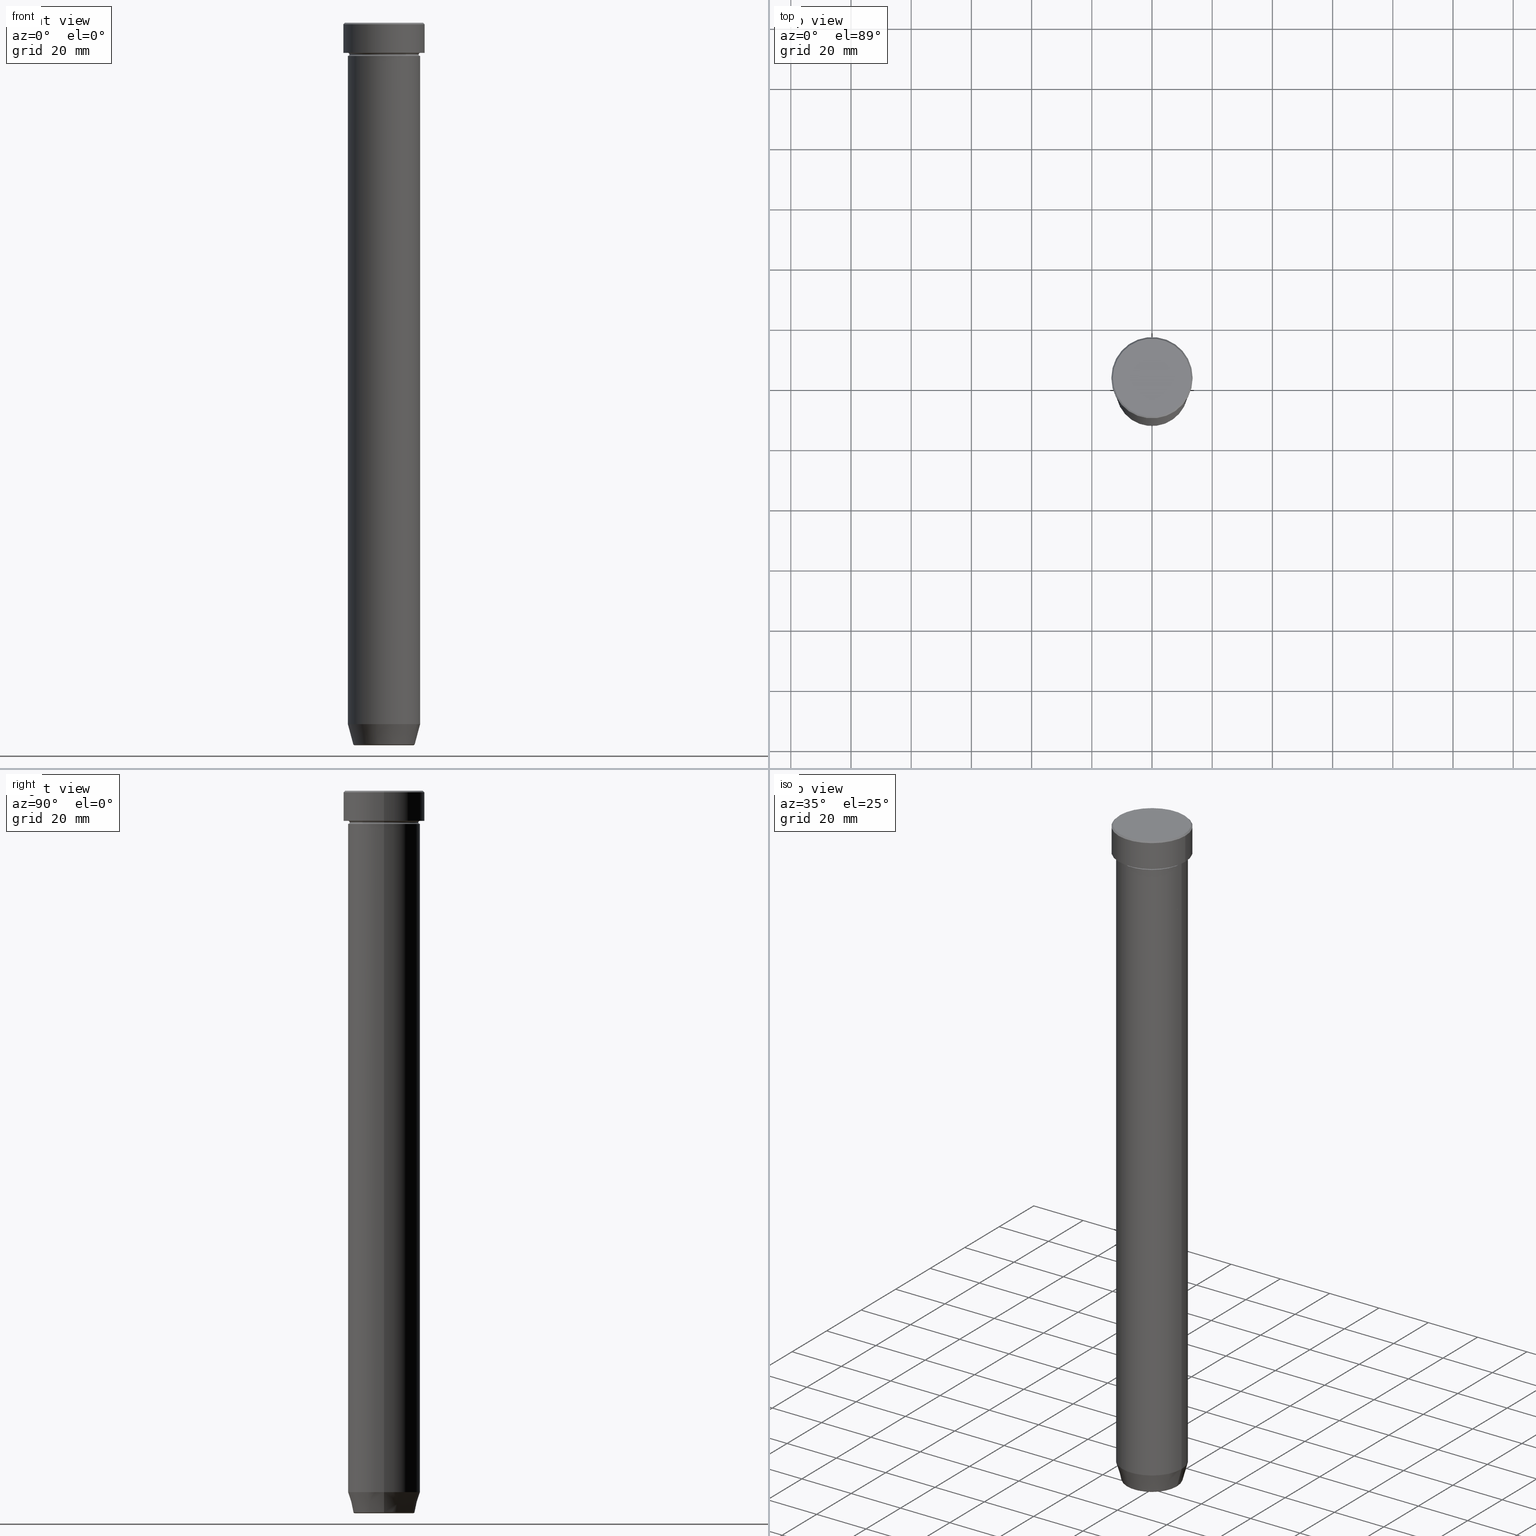
[diagram: canonical four-view strip — front | top / right | iso, engineering-drawing reading convention]
A machine part, canonical four-view strip (front | top / right | iso — engineering-drawing reading convention). The complete STEP part file that produces these views, byte-faithful:
ISO-10303-21;
HEADER;
FILE_DESCRIPTION (( 'STEP AP203' ),
    '1' );
FILE_NAME ('052b.STEP',
    '2024-01-02T17:41:07',
    ( '' ),
    ( '' ),
    'SwSTEP 2.0',
    'SolidWorks 2019',
    '' );
FILE_SCHEMA (( 'CONFIG_CONTROL_DESIGN' ));
ENDSEC;

DATA;
#1 = EDGE_CURVE ( 'NONE', #207, #245, #401, .T. ) ;
#2 = CYLINDRICAL_SURFACE ( 'NONE', #397, 12.00000000000000000 ) ;
#3 = FACE_OUTER_BOUND ( 'NONE', #31, .T. ) ;
#4 = APPROVAL_STATUS ( 'not_yet_approved' ) ;
#5 = CC_DESIGN_PERSON_AND_ORGANIZATION_ASSIGNMENT ( #160, #157, ( #568 ) ) ;
#6 =( LENGTH_UNIT ( ) NAMED_UNIT ( * ) SI_UNIT ( .MILLI., .METRE. ) );
#7 = CARTESIAN_POINT ( 'NONE',  ( 0.000000000000000000, 0.000000000000000000, -10.49999999999999822 ) ) ;
#8 = SHAPE_DEFINITION_REPRESENTATION ( #171, #261 ) ;
#9 = VECTOR ( 'NONE', #59, 1000.000000000000114 ) ;
#10 = AXIS2_PLACEMENT_3D ( 'NONE', #290, #206, #427 ) ;
#11 = DIRECTION ( 'NONE',  ( -0.000000000000000000, -0.000000000000000000, 1.000000000000000000 ) ) ;
#12 = ADVANCED_FACE ( 'NONE', ( #82 ), #408, .T. ) ;
#13 = DIRECTION ( 'NONE',  ( 1.000000000000000000, 0.000000000000000000, 0.000000000000000000 ) ) ;
#14 = EDGE_LOOP ( 'NONE', ( #303, #175 ) ) ;
#15 = ORIENTED_EDGE ( 'NONE', *, *, #308, .F. ) ;
#16 = CIRCLE ( 'NONE', #85, 13.50000000000000000 ) ;
#17 = CALENDAR_DATE ( 2024, 2, 1 ) ;
#18 = VECTOR ( 'NONE', #448, 1000.000000000000000 ) ;
#19 = CARTESIAN_POINT ( 'NONE',  ( 10.22365507213719482, 0.000000000000000000, -239.6294095225512422 ) ) ;
#20 = EDGE_LOOP ( 'NONE', ( #262, #581, #550, #122 ) ) ;
#21 = EDGE_CURVE ( 'NONE', #484, #257, #137, .T. ) ;
#22 = PERSON_AND_ORGANIZATION_ROLE ( 'classification_officer' ) ;
#23 = FACE_OUTER_BOUND ( 'NONE', #213, .T. ) ;
#24 = VERTEX_POINT ( 'NONE', #93 ) ;
#25 = CARTESIAN_POINT ( 'NONE',  ( 0.000000000000000000, 0.000000000000000000, -240.0000000000000000 ) ) ;
#26 = ORIENTED_EDGE ( 'NONE', *, *, #21, .F. ) ;
#27 = AXIS2_PLACEMENT_3D ( 'NONE', #194, #151, #336 ) ;
#28 = EDGE_CURVE ( 'NONE', #340, #489, #426, .T. ) ;
#29 = ORIENTED_EDGE ( 'NONE', *, *, #364, .T. ) ;
#30 = ORIENTED_EDGE ( 'NONE', *, *, #354, .T. ) ;
#31 = EDGE_LOOP ( 'NONE', ( #588, #165, #394, #537 ) ) ;
#32 = LINE ( 'NONE', #212, #18 ) ;
#33 = CIRCLE ( 'NONE', #328, 12.00000000000000000 ) ;
#34 = TOROIDAL_SURFACE ( 'NONE', #404, 9.740692158992663607, 0.5000000000000000000 ) ;
#35 = ORIENTED_EDGE ( 'NONE', *, *, #146, .T. ) ;
#36 = EDGE_CURVE ( 'NONE', #475, #24, #224, .T. ) ;
#37 = CIRCLE ( 'NONE', #195, 12.99999999999999645 ) ;
#38 = DIRECTION ( 'NONE',  ( 0.000000000000000000, 0.000000000000000000, -1.000000000000000000 ) ) ;
#39 = DIRECTION ( 'NONE',  ( -0.000000000000000000, -0.000000000000000000, 1.000000000000000000 ) ) ;
#40 = LINE ( 'NONE', #91, #174 ) ;
#41 = DIRECTION ( 'NONE',  ( -1.000000000000000000, 0.000000000000000000, 0.000000000000000000 ) ) ;
#42 = DIRECTION ( 'NONE',  ( -1.000000000000000000, 0.000000000000000000, 0.000000000000000000 ) ) ;
#43 = CONICAL_SURFACE ( 'NONE', #433, 10.12435565298214080, 0.2617993877991493523 ) ;
#44 = EDGE_CURVE ( 'NONE', #347, #169, #37, .T. ) ;
#45 = DIRECTION ( 'NONE',  ( -0.000000000000000000, -0.000000000000000000, 1.000000000000000000 ) ) ;
#46 = AXIS2_PLACEMENT_3D ( 'NONE', #267, #594, #457 ) ;
#47 = CC_DESIGN_APPROVAL ( #579, ( #534 ) ) ;
#48 = DIRECTION ( 'NONE',  ( 1.000000000000000000, 0.000000000000000000, 0.000000000000000000 ) ) ;
#49 = DIRECTION ( 'NONE',  ( -0.000000000000000000, -0.000000000000000000, 1.000000000000000000 ) ) ;
#50 = COORDINATED_UNIVERSAL_TIME_OFFSET ( 1, 0, .AHEAD. ) ;
#51 = DIRECTION ( 'NONE',  ( 0.000000000000000000, 0.000000000000000000, -1.000000000000000000 ) ) ;
#52 = CARTESIAN_POINT ( 'NONE',  ( 0.000000000000000000, 0.000000000000000000, 0.000000000000000000 ) ) ;
#53 = CARTESIAN_POINT ( 'NONE',  ( 0.000000000000000000, 0.000000000000000000, -27.00000000000000000 ) ) ;
#54 = CARTESIAN_POINT ( 'NONE',  ( 12.00000000000000000, 0.000000000000000000, -11.00000000000000000 ) ) ;
#55 = AXIS2_PLACEMENT_3D ( 'NONE', #161, #346, #116 ) ;
#56 = CARTESIAN_POINT ( 'NONE',  ( 0.000000000000000000, 0.000000000000000000, -27.00000000000000000 ) ) ;
#57 = EDGE_CURVE ( 'NONE', #449, #204, #88, .T. ) ;
#58 = CLOSED_SHELL ( 'NONE', ( #65, #243, #583, #549, #111, #463, #539, #592, #302, #455, #167, #504, #473 ) ) ;
#59 = DIRECTION ( 'NONE',  ( 0.2588190451025206840, 0.000000000000000000, 0.9659258262890683122 ) ) ;
#60 = ORIENTED_EDGE ( 'NONE', *, *, #28, .F. ) ;
#61 = CARTESIAN_POINT ( 'NONE',  ( 0.000000000000000000, 0.000000000000000000, -240.0000000000000000 ) ) ;
#62 = EDGE_LOOP ( 'NONE', ( #76, #400, #117, #268 ) ) ;
#63 = COORDINATED_UNIVERSAL_TIME_OFFSET ( 1, 0, .AHEAD. ) ;
#64 = CARTESIAN_POINT ( 'NONE',  ( 12.00000000000000000, 1.469576158976823947E-15, -9.999999999999998224 ) ) ;
#65 = ADVANCED_FACE ( 'NONE', ( #134 ), #312, .T. ) ;
#66 = ORIENTED_EDGE ( 'NONE', *, *, #423, .F. ) ;
#67 = CIRCLE ( 'NONE', #403, 0.5000000000000004441 ) ;
#68 = PERSON_AND_ORGANIZATION_ROLE ( 'creator' ) ;
#69 = CIRCLE ( 'NONE', #105, 11.50000000000000000 ) ;
#70 = CARTESIAN_POINT ( 'NONE',  ( 0.000000000000000000, 0.000000000000000000, -232.9999999999999716 ) ) ;
#71 = CLOSED_SHELL ( 'NONE', ( #335, #318, #12, #535, #372, #447, #293, #405 ) ) ;
#72 = EDGE_LOOP ( 'NONE', ( #435, #564 ) ) ;
#73 = AXIS2_PLACEMENT_3D ( 'NONE', #367, #503, #41 ) ;
#74 = DIRECTION ( 'NONE',  ( 1.000000000000000000, 0.000000000000000000, 0.000000000000000000 ) ) ;
#75 = VERTEX_POINT ( 'NONE', #233 ) ;
#76 = ORIENTED_EDGE ( 'NONE', *, *, #388, .F. ) ;
#77 = CONICAL_SURFACE ( 'NONE', #352, 10.12435565298214080, 0.2617993877991493523 ) ;
#78 = VERTEX_POINT ( 'NONE', #189 ) ;
#79 = ORIENTED_EDGE ( 'NONE', *, *, #218, .F. ) ;
#80 = CARTESIAN_POINT ( 'NONE',  ( 0.000000000000000000, 12.00000000000000000, -27.00000000000000000 ) ) ;
#81 = MANIFOLD_SOLID_BREP ( 'Zaoblit4', #71 ) ;
#82 = FACE_OUTER_BOUND ( 'NONE', #317, .T. ) ;
#83 = PRODUCT_DEFINITION ( 'NEZN�M�', '', #568, #497 ) ;
#84 = DIRECTION ( 'NONE',  ( -1.000000000000000000, 0.000000000000000000, -0.000000000000000000 ) ) ;
#85 = AXIS2_PLACEMENT_3D ( 'NONE', #280, #39, #371 ) ;
#86 = CONICAL_SURFACE ( 'NONE', #125, 12.99999999999999645, 0.7853981633974431720 ) ;
#87 = CARTESIAN_POINT ( 'NONE',  ( 0.000000000000000000, 0.000000000000000000, 0.000000000000000000 ) ) ;
#88 = CIRCLE ( 'NONE', #502, 9.740692158992663607 ) ;
#89 = DIRECTION ( 'NONE',  ( -1.000000000000000000, 1.224646799147353454E-16, 0.000000000000000000 ) ) ;
#90 = CARTESIAN_POINT ( 'NONE',  ( 9.740692158992663607, 0.000000000000000000, -239.5000000000000000 ) ) ;
#91 = CARTESIAN_POINT ( 'NONE',  ( -12.99999999999999645, 0.000000000000000000, 0.000000000000000000 ) ) ;
#92 = EDGE_CURVE ( 'NONE', #24, #78, #235, .T. ) ;
#93 = CARTESIAN_POINT ( 'NONE',  ( 13.50000000000000000, 0.000000000000000000, -10.00000000000000000 ) ) ;
#94 = APPLICATION_PROTOCOL_DEFINITION ( 'international standard', 'config_control_design', 1994, #222 ) ;
#95 = CARTESIAN_POINT ( 'NONE',  ( 13.50000000000000000, 0.000000000000000000, 0.000000000000000000 ) ) ;
#96 = AXIS2_PLACEMENT_3D ( 'NONE', #234, #99, #276 ) ;
#97 = DIRECTION ( 'NONE',  ( -1.000000000000000000, 0.000000000000000000, 0.000000000000000000 ) ) ;
#98 = CARTESIAN_POINT ( 'NONE',  ( 9.740692158992663607, 0.000000000000000000, -240.0000000000000000 ) ) ;
#99 = DIRECTION ( 'NONE',  ( -0.000000000000000000, -0.000000000000000000, 1.000000000000000000 ) ) ;
#100 = CARTESIAN_POINT ( 'NONE',  ( 0.000000000000000000, 0.000000000000000000, 0.000000000000000000 ) ) ;
#101 = CC_DESIGN_PERSON_AND_ORGANIZATION_ASSIGNMENT ( #479, #68, ( #83 ) ) ;
#102 = DIRECTION ( 'NONE',  ( 1.000000000000000000, 0.000000000000000000, 0.000000000000000000 ) ) ;
#103 = CARTESIAN_POINT ( 'NONE',  ( 0.000000000000000000, 0.000000000000000000, -10.49999999999999822 ) ) ;
#104 = VERTEX_POINT ( 'NONE', #461 ) ;
#105 = AXIS2_PLACEMENT_3D ( 'NONE', #342, #164, #349 ) ;
#106 = LOCAL_TIME ( 18, 41, 7.000000000000000000, #163 ) ;
#107 = MECHANICAL_CONTEXT ( 'NONE', #519, 'mechanical' ) ;
#108 = LINE ( 'NONE', #209, #547 ) ;
#109 = ORIENTED_EDGE ( 'NONE', *, *, #575, .T. ) ;
#110 = DATE_TIME_ROLE ( 'classification_date' ) ;
#111 = ADVANCED_FACE ( 'NONE', ( #3 ), #229, .T. ) ;
#112 = DIRECTION ( 'NONE',  ( -1.000000000000000000, 0.000000000000000000, 0.000000000000000000 ) ) ;
#113 = EDGE_LOOP ( 'NONE', ( #124, #566, #159, #440 ) ) ;
#114 = APPROVAL_ROLE ( '' ) ;
#115 = CC_DESIGN_PERSON_AND_ORGANIZATION_ASSIGNMENT ( #389, #208, ( #568 ) ) ;
#116 = DIRECTION ( 'NONE',  ( 1.000000000000000000, 0.000000000000000000, 0.000000000000000000 ) ) ;
#117 = ORIENTED_EDGE ( 'NONE', *, *, #399, .T. ) ;
#118 = VECTOR ( 'NONE', #477, 1000.000000000000000 ) ;
#119 = TOROIDAL_SURFACE ( 'NONE', #532, 12.00000000000000000, 0.5000000000000000000 ) ;
#120 = CARTESIAN_POINT ( 'NONE',  ( 0.000000000000000000, 0.000000000000000000, -239.5000000000000000 ) ) ;
#121 = ORIENTED_EDGE ( 'NONE', *, *, #364, .F. ) ;
#122 = ORIENTED_EDGE ( 'NONE', *, *, #128, .F. ) ;
#123 = EDGE_CURVE ( 'NONE', #204, #298, #319, .T. ) ;
#124 = ORIENTED_EDGE ( 'NONE', *, *, #57, .F. ) ;
#125 = AXIS2_PLACEMENT_3D ( 'NONE', #452, #38, #42 ) ;
#126 = ORIENTED_EDGE ( 'NONE', *, *, #211, .F. ) ;
#127 = DIRECTION ( 'NONE',  ( -0.000000000000000000, -0.000000000000000000, 1.000000000000000000 ) ) ;
#128 = EDGE_CURVE ( 'NONE', #78, #357, #368, .T. ) ;
#129 = VERTEX_POINT ( 'NONE', #596 ) ;
#130 = DIRECTION ( 'NONE',  ( 0.000000000000000000, 0.000000000000000000, -1.000000000000000000 ) ) ;
#131 = DIRECTION ( 'NONE',  ( -0.000000000000000000, -0.000000000000000000, 1.000000000000000000 ) ) ;
#132 = CARTESIAN_POINT ( 'NONE',  ( 0.000000000000000000, 0.000000000000000000, -10.49999999999999822 ) ) ;
#133 = CIRCLE ( 'NONE', #587, 0.5000000000000004441 ) ;
#134 = FACE_OUTER_BOUND ( 'NONE', #362, .T. ) ;
#135 = VERTEX_POINT ( 'NONE', #185 ) ;
#136 = EDGE_CURVE ( 'NONE', #24, #475, #16, .T. ) ;
#137 = CIRCLE ( 'NONE', #407, 12.00000000000000000 ) ;
#138 = DIRECTION ( 'NONE',  ( 1.000000000000000000, 0.000000000000000000, 0.000000000000000000 ) ) ;
#139 = CARTESIAN_POINT ( 'NONE',  ( 0.000000000000000000, 0.000000000000000000, -11.00000000000000000 ) ) ;
#140 = PERSON_AND_ORGANIZATION_ROLE ( 'design_owner' ) ;
#141 = DIRECTION ( 'NONE',  ( 1.000000000000000000, 0.000000000000000000, 0.000000000000000000 ) ) ;
#142 =( NAMED_UNIT ( * ) PLANE_ANGLE_UNIT ( ) SI_UNIT ( $, .RADIAN. ) );
#143 = DIRECTION ( 'NONE',  ( 1.000000000000000000, 0.000000000000000000, 0.000000000000000000 ) ) ;
#144 = FACE_OUTER_BOUND ( 'NONE', #313, .T. ) ;
#145 = AXIS2_PLACEMENT_3D ( 'NONE', #548, #274, #456 ) ;
#146 = EDGE_CURVE ( 'NONE', #169, #78, #553, .T. ) ;
#147 = CARTESIAN_POINT ( 'NONE',  ( -9.740692158992663607, 1.192890747399008653E-15, -239.5000000000000000 ) ) ;
#148 = DIRECTION ( 'NONE',  ( -0.000000000000000000, -0.000000000000000000, 1.000000000000000000 ) ) ;
#149 = CARTESIAN_POINT ( 'NONE',  ( 0.000000000000000000, 13.50000000000000000, -9.999999999999998224 ) ) ;
#150 = ORIENTED_EDGE ( 'NONE', *, *, #21, .T. ) ;
#151 = DIRECTION ( 'NONE',  ( 0.000000000000000000, 0.000000000000000000, 1.000000000000000000 ) ) ;
#152 = DIRECTION ( 'NONE',  ( -0.000000000000000000, -0.000000000000000000, 1.000000000000000000 ) ) ;
#153 = AXIS2_PLACEMENT_3D ( 'NONE', #149, #474, #203 ) ;
#154 = ORIENTED_EDGE ( 'NONE', *, *, #1, .F. ) ;
#155 = LOCAL_TIME ( 18, 41, 7.000000000000000000, #392 ) ;
#156 = EDGE_CURVE ( 'NONE', #489, #340, #508, .T. ) ;
#157 = PERSON_AND_ORGANIZATION_ROLE ( 'design_supplier' ) ;
#158 = PLANE ( 'NONE',  #153 ) ;
#159 = ORIENTED_EDGE ( 'NONE', *, *, #492, .F. ) ;
#160 = PERSON_AND_ORGANIZATION ( #246, #523 ) ;
#161 = CARTESIAN_POINT ( 'NONE',  ( 0.000000000000000000, 0.000000000000000000, -239.5000000000000000 ) ) ;
#162 = EDGE_LOOP ( 'NONE', ( #536, #216, #343, #201 ) ) ;
#163 = COORDINATED_UNIVERSAL_TIME_OFFSET ( 1, 0, .AHEAD. ) ;
#164 = DIRECTION ( 'NONE',  ( -0.000000000000000000, -0.000000000000000000, 1.000000000000000000 ) ) ;
#165 = ORIENTED_EDGE ( 'NONE', *, *, #511, .T. ) ;
#166 = AXIS2_PLACEMENT_3D ( 'NONE', #569, #286, #383 ) ;
#167 = ADVANCED_FACE ( 'NONE', ( #506 ), #251, .F. ) ;
#168 = ORIENTED_EDGE ( 'NONE', *, *, #423, .T. ) ;
#169 = VERTEX_POINT ( 'NONE', #421 ) ;
#170 = EDGE_LOOP ( 'NONE', ( #154, #471, #387, #431 ) ) ;
#171 = PRODUCT_DEFINITION_SHAPE ( 'NONE', 'NONE',  #83 ) ;
#172 = EDGE_CURVE ( 'NONE', #307, #135, #33, .T. ) ;
#173 = FACE_OUTER_BOUND ( 'NONE', #531, .T. ) ;
#174 = VECTOR ( 'NONE', #177, 1000.000000000000000 ) ;
#175 = ORIENTED_EDGE ( 'NONE', *, *, #236, .F. ) ;
#176 = AXIS2_PLACEMENT_3D ( 'NONE', #87, #131, #590 ) ;
#177 = DIRECTION ( 'NONE',  ( -0.7071067811865439090, 0.000000000000000000, -0.7071067811865512365 ) ) ;
#178 = CC_DESIGN_DATE_AND_TIME_ASSIGNMENT ( #526, #110, ( #534 ) ) ;
#179 = CARTESIAN_POINT ( 'NONE',  ( 0.000000000000000000, 0.000000000000000000, -9.999999999999998224 ) ) ;
#180 = FACE_OUTER_BOUND ( 'NONE', #248, .T. ) ;
#181 = DIRECTION ( 'NONE',  ( 1.000000000000000000, 0.000000000000000000, 0.000000000000000000 ) ) ;
#182 = DIRECTION ( 'NONE',  ( -1.000000000000000000, 0.000000000000000000, 0.000000000000000000 ) ) ;
#183 = AXIS2_PLACEMENT_3D ( 'NONE', #226, #196, #527 ) ;
#184 = CIRCLE ( 'NONE', #253, 10.22365507213719482 ) ;
#185 = CARTESIAN_POINT ( 'NONE',  ( -12.00000000000000000, 1.469576158976823947E-15, -27.00000000000000000 ) ) ;
#186 = DIRECTION ( 'NONE',  ( -0.000000000000000000, -0.000000000000000000, 1.000000000000000000 ) ) ;
#187 = DIRECTION ( 'NONE',  ( -0.000000000000000000, -0.000000000000000000, 1.000000000000000000 ) ) ;
#188 = CARTESIAN_POINT ( 'NONE',  ( 0.000000000000000000, 0.000000000000000000, 0.000000000000000000 ) ) ;
#189 = CARTESIAN_POINT ( 'NONE',  ( 13.50000000000000000, 0.000000000000000000, -0.5000000000000091038 ) ) ;
#190 = PLANE ( 'NONE',  #424 ) ;
#191 = CC_DESIGN_PERSON_AND_ORGANIZATION_ASSIGNMENT ( #202, #140, ( #355 ) ) ;
#192 = CARTESIAN_POINT ( 'NONE',  ( -10.22365507213719482, 1.360806402472382547E-15, -239.6294095225512422 ) ) ;
#193 = CIRCLE ( 'NONE', #369, 10.22365507213719482 ) ;
#194 = CARTESIAN_POINT ( 'NONE',  ( 0.000000000000000000, 0.000000000000000000, 0.000000000000000000 ) ) ;
#195 = AXIS2_PLACEMENT_3D ( 'NONE', #100, #507, #282 ) ;
#196 = DIRECTION ( 'NONE',  ( 0.000000000000000000, 0.000000000000000000, -1.000000000000000000 ) ) ;
#197 = ORIENTED_EDGE ( 'NONE', *, *, #412, .T. ) ;
#198 = DIRECTION ( 'NONE',  ( 0.000000000000000000, -0.000000000000000000, 1.000000000000000000 ) ) ;
#199 = CARTESIAN_POINT ( 'NONE',  ( 0.000000000000000000, 0.000000000000000000, -27.00000000000000000 ) ) ;
#200 = EDGE_CURVE ( 'NONE', #381, #129, #422, .T. ) ;
#201 = ORIENTED_EDGE ( 'NONE', *, *, #575, .F. ) ;
#202 = PERSON_AND_ORGANIZATION ( #246, #523 ) ;
#203 = DIRECTION ( 'NONE',  ( -1.000000000000000000, 0.000000000000000000, -0.000000000000000000 ) ) ;
#204 = VERTEX_POINT ( 'NONE', #98 ) ;
#205 = CALENDAR_DATE ( 2024, 2, 1 ) ;
#206 = DIRECTION ( 'NONE',  ( -1.224646799147353207E-16, 1.000000000000000000, 0.000000000000000000 ) ) ;
#207 = VERTEX_POINT ( 'NONE', #192 ) ;
#208 = PERSON_AND_ORGANIZATION_ROLE ( 'creator' ) ;
#209 = CARTESIAN_POINT ( 'NONE',  ( 12.00000000000000000, 0.000000000000000000, 0.000000000000000000 ) ) ;
#210 = ORIENTED_EDGE ( 'NONE', *, *, #521, .T. ) ;
#211 = EDGE_CURVE ( 'NONE', #449, #207, #67, .T. ) ;
#212 = CARTESIAN_POINT ( 'NONE',  ( -12.00000000000000000, 1.469576158976823947E-15, 0.000000000000000000 ) ) ;
#213 = EDGE_LOOP ( 'NONE', ( #223, #295 ) ) ;
#214 = AXIS2_PLACEMENT_3D ( 'NONE', #339, #565, #516 ) ;
#215 = AXIS2_PLACEMENT_3D ( 'NONE', #542, #127, #74 ) ;
#216 = ORIENTED_EDGE ( 'NONE', *, *, #345, .T. ) ;
#217 = ORIENTED_EDGE ( 'NONE', *, *, #412, .F. ) ;
#218 = EDGE_CURVE ( 'NONE', #357, #78, #240, .T. ) ;
#219 = ORIENTED_EDGE ( 'NONE', *, *, #264, .T. ) ;
#220 = DIRECTION ( 'NONE',  ( -0.000000000000000000, -0.000000000000000000, 1.000000000000000000 ) ) ;
#221 = AXIS2_PLACEMENT_3D ( 'NONE', #80, #130, #84 ) ;
#222 = APPLICATION_CONTEXT ( 'configuration controlled 3d designs of mechanical parts and assemblies' ) ;
#223 = ORIENTED_EDGE ( 'NONE', *, *, #272, .T. ) ;
#224 = CIRCLE ( 'NONE', #559, 13.50000000000000000 ) ;
#225 = CARTESIAN_POINT ( 'NONE',  ( -12.00000000000000000, 0.000000000000000000, -9.999999999999998224 ) ) ;
#226 = CARTESIAN_POINT ( 'NONE',  ( 0.000000000000000000, 0.000000000000000000, -0.5000000000000091038 ) ) ;
#227 = CYLINDRICAL_SURFACE ( 'NONE', #241, 12.00000000000000000 ) ;
#228 = EDGE_CURVE ( 'NONE', #245, #135, #563, .T. ) ;
#229 = CYLINDRICAL_SURFACE ( 'NONE', #414, 13.50000000000000000 ) ;
#230 = CARTESIAN_POINT ( 'NONE',  ( -12.00000000000000000, 1.469576158976823947E-15, -11.00000000000000000 ) ) ;
#231 = LOCAL_TIME ( 18, 41, 7.000000000000000000, #63 ) ;
#232 = CC_DESIGN_APPROVAL ( #311, ( #568 ) ) ;
#233 = CARTESIAN_POINT ( 'NONE',  ( -12.00000000000000000, 1.469576158976823947E-15, -27.00000000000000000 ) ) ;
#234 = CARTESIAN_POINT ( 'NONE',  ( 0.000000000000000000, 0.000000000000000000, 0.000000000000000000 ) ) ;
#235 = LINE ( 'NONE', #95, #491 ) ;
#236 = EDGE_CURVE ( 'NONE', #75, #545, #450, .T. ) ;
#237 = CARTESIAN_POINT ( 'NONE',  ( 0.000000000000000000, 0.000000000000000000, -239.6294095225512422 ) ) ;
#238 = DIRECTION ( 'NONE',  ( 1.000000000000000000, 0.000000000000000000, 0.000000000000000000 ) ) ;
#239 = DIRECTION ( 'NONE',  ( 1.000000000000000000, 0.000000000000000000, 0.000000000000000000 ) ) ;
#240 = CIRCLE ( 'NONE', #183, 13.50000000000000000 ) ;
#241 = AXIS2_PLACEMENT_3D ( 'NONE', #314, #585, #360 ) ;
#242 = DIRECTION ( 'NONE',  ( 0.000000000000000000, 0.000000000000000000, -1.000000000000000000 ) ) ;
#243 = ADVANCED_FACE ( 'NONE', ( #244 ), #442, .F. ) ;
#244 = FACE_OUTER_BOUND ( 'NONE', #445, .T. ) ;
#245 = VERTEX_POINT ( 'NONE', #470 ) ;
#246 = PERSON ( 'NEUR�EN�', 'NEUR�EN�', 'NEUR�EN�', ('NEUR�EN�'), ('NEUR�EN�'), ('NEUR�EN�') ) ;
#247 = DIRECTION ( 'NONE',  ( 1.000000000000000000, 0.000000000000000000, 0.000000000000000000 ) ) ;
#248 = EDGE_LOOP ( 'NONE', ( #384, #30, #197, #66 ) ) ;
#249 = DATE_AND_TIME ( #205, #231 ) ;
#250 = LINE ( 'NONE', #386, #9 ) ;
#251 = TOROIDAL_SURFACE ( 'NONE', #586, 12.00000000000000000, 0.5000000000000000000 ) ;
#252 = ORIENTED_EDGE ( 'NONE', *, *, #236, .T. ) ;
#253 = AXIS2_PLACEMENT_3D ( 'NONE', #237, #374, #97 ) ;
#254 = APPROVAL_STATUS ( 'not_yet_approved' ) ;
#255 = UNCERTAINTY_MEASURE_WITH_UNIT (LENGTH_MEASURE( 1.000000000000000082E-05 ), #6, 'distance_accuracy_value', 'NONE');
#256 = DIRECTION ( 'NONE',  ( -0.000000000000000000, -0.000000000000000000, 1.000000000000000000 ) ) ;
#257 = VERTEX_POINT ( 'NONE', #64 ) ;
#258 = EDGE_CURVE ( 'NONE', #298, #104, #250, .T. ) ;
#259 = DIRECTION ( 'NONE',  ( -1.000000000000000000, 0.000000000000000000, 0.000000000000000000 ) ) ;
#260 = EDGE_LOOP ( 'NONE', ( #444, #109 ) ) ;
#261 = ADVANCED_BREP_SHAPE_REPRESENTATION ( '052b', ( #460, #81, #27 ), #320 ) ;
#262 = ORIENTED_EDGE ( 'NONE', *, *, #146, .F. ) ;
#263 = AXIS2_PLACEMENT_3D ( 'NONE', #297, #429, #300 ) ;
#264 = EDGE_CURVE ( 'NONE', #104, #245, #350, .T. ) ;
#265 = EDGE_LOOP ( 'NONE', ( #150, #168 ) ) ;
#266 = ORIENTED_EDGE ( 'NONE', *, *, #36, .T. ) ;
#267 = CARTESIAN_POINT ( 'NONE',  ( 12.00000000000000000, 0.000000000000000000, -10.49999999999999822 ) ) ;
#268 = ORIENTED_EDGE ( 'NONE', *, *, #28, .T. ) ;
#269 = AXIS2_PLACEMENT_3D ( 'NONE', #199, #152, #13 ) ;
#270 = AXIS2_PLACEMENT_3D ( 'NONE', #472, #418, #102 ) ;
#271 = DIRECTION ( 'NONE',  ( -0.000000000000000000, -0.000000000000000000, 1.000000000000000000 ) ) ;
#272 = EDGE_CURVE ( 'NONE', #204, #449, #520, .T. ) ;
#273 = CARTESIAN_POINT ( 'NONE',  ( 0.000000000000000000, 0.000000000000000000, -9.999999999999998224 ) ) ;
#274 = DIRECTION ( 'NONE',  ( -0.000000000000000000, -0.000000000000000000, 1.000000000000000000 ) ) ;
#275 = DIRECTION ( 'NONE',  ( -0.000000000000000000, -1.000000000000000000, -0.000000000000000000 ) ) ;
#276 = DIRECTION ( 'NONE',  ( 1.000000000000000000, 0.000000000000000000, 0.000000000000000000 ) ) ;
#277 = AXIS2_PLACEMENT_3D ( 'NONE', #90, #560, #413 ) ;
#278 = TOROIDAL_SURFACE ( 'NONE', #55, 9.740692158992663607, 0.5000000000000000000 ) ;
#279 = EDGE_CURVE ( 'NONE', #545, #75, #337, .T. ) ;
#280 = CARTESIAN_POINT ( 'NONE',  ( 0.000000000000000000, 0.000000000000000000, -10.00000000000000000 ) ) ;
#281 = DIRECTION ( 'NONE',  ( -0.000000000000000000, -0.000000000000000000, 1.000000000000000000 ) ) ;
#282 = DIRECTION ( 'NONE',  ( 1.000000000000000000, 0.000000000000000000, 0.000000000000000000 ) ) ;
#283 = CC_DESIGN_PERSON_AND_ORGANIZATION_ASSIGNMENT ( #385, #22, ( #534 ) ) ;
#284 = APPROVAL_DATE_TIME ( #561, #579 ) ;
#285 = PERSON_AND_ORGANIZATION ( #246, #523 ) ;
#286 = DIRECTION ( 'NONE',  ( -0.000000000000000000, -0.000000000000000000, 1.000000000000000000 ) ) ;
#287 = PERSON_AND_ORGANIZATION ( #246, #523 ) ;
#288 = CARTESIAN_POINT ( 'NONE',  ( 0.000000000000000000, 0.000000000000000000, 0.000000000000000000 ) ) ;
#289 = CIRCLE ( 'NONE', #10, 0.5000000000000004441 ) ;
#290 = CARTESIAN_POINT ( 'NONE',  ( 12.00000000000000000, 1.469576158976823947E-15, -10.49999999999999822 ) ) ;
#291 = EDGE_LOOP ( 'NONE', ( #446, #266, #428, #570 ) ) ;
#292 = DIRECTION ( 'NONE',  ( -1.000000000000000000, 0.000000000000000000, -0.000000000000000000 ) ) ;
#293 = ADVANCED_FACE ( 'NONE', ( #23 ), #524, .F. ) ;
#294 = DIRECTION ( 'NONE',  ( -0.000000000000000000, -0.000000000000000000, 1.000000000000000000 ) ) ;
#295 = ORIENTED_EDGE ( 'NONE', *, *, #57, .T. ) ;
#296 = CALENDAR_DATE ( 2024, 2, 1 ) ;
#297 = CARTESIAN_POINT ( 'NONE',  ( 0.000000000000000000, 2.326828918379971286E-14, -240.0000000000000000 ) ) ;
#298 = VERTEX_POINT ( 'NONE', #19 ) ;
#299 = DATE_AND_TIME ( #17, #155 ) ;
#300 = DIRECTION ( 'NONE',  ( 1.000000000000000000, 0.000000000000000000, 0.000000000000000000 ) ) ;
#301 = AXIS2_PLACEMENT_3D ( 'NONE', #375, #453, #141 ) ;
#302 = ADVANCED_FACE ( 'NONE', ( #530, #481 ), #158, .T. ) ;
#303 = ORIENTED_EDGE ( 'NONE', *, *, #279, .F. ) ;
#304 = AXIS2_PLACEMENT_3D ( 'NONE', #56, #148, #48 ) ;
#305 = DIRECTION ( 'NONE',  ( 1.000000000000000000, 0.000000000000000000, 0.000000000000000000 ) ) ;
#306 = ORIENTED_EDGE ( 'NONE', *, *, #44, .T. ) ;
#307 = VERTEX_POINT ( 'NONE', #333 ) ;
#308 = EDGE_CURVE ( 'NONE', #104, #307, #108, .T. ) ;
#309 = ORIENTED_EDGE ( 'NONE', *, *, #123, .T. ) ;
#310 = AXIS2_PLACEMENT_3D ( 'NONE', #70, #256, #393 ) ;
#311 = APPROVAL ( #254, 'NEUR�EN�' ) ;
#312 = CONICAL_SURFACE ( 'NONE', #73, 12.99999999999999645, 0.7853981633974431720 ) ;
#313 = EDGE_LOOP ( 'NONE', ( #573, #495, #577, #543 ) ) ;
#314 = CARTESIAN_POINT ( 'NONE',  ( 0.000000000000000000, 0.000000000000000000, 0.000000000000000000 ) ) ;
#315 = ORIENTED_EDGE ( 'NONE', *, *, #430, .F. ) ;
#316 = DIRECTION ( 'NONE',  ( -0.000000000000000000, -0.000000000000000000, 1.000000000000000000 ) ) ;
#317 = EDGE_LOOP ( 'NONE', ( #219, #518, #398, #15 ) ) ;
#318 = ADVANCED_FACE ( 'NONE', ( #572 ), #43, .T. ) ;
#319 = CIRCLE ( 'NONE', #277, 0.5000000000000004441 ) ;
#320 =( GEOMETRIC_REPRESENTATION_CONTEXT ( 3 ) GLOBAL_UNCERTAINTY_ASSIGNED_CONTEXT ( ( #255 ) ) GLOBAL_UNIT_ASSIGNED_CONTEXT ( ( #6, #142, #510 ) ) REPRESENTATION_CONTEXT ( 'NONE', 'WORKASPACE' ) );
#321 = DIRECTION ( 'NONE',  ( 0.000000000000000000, 0.000000000000000000, -1.000000000000000000 ) ) ;
#322 = DIRECTION ( 'NONE',  ( 1.000000000000000000, 0.000000000000000000, 0.000000000000000000 ) ) ;
#323 = FACE_OUTER_BOUND ( 'NONE', #20, .T. ) ;
#324 = DIRECTION ( 'NONE',  ( -1.000000000000000000, 0.000000000000000000, 0.000000000000000000 ) ) ;
#325 = FACE_OUTER_BOUND ( 'NONE', #260, .T. ) ;
#326 = EDGE_CURVE ( 'NONE', #129, #257, #289, .T. ) ;
#327 = DIRECTION ( 'NONE',  ( -0.000000000000000000, -0.000000000000000000, 1.000000000000000000 ) ) ;
#328 = AXIS2_PLACEMENT_3D ( 'NONE', #458, #330, #512 ) ;
#329 = CIRCLE ( 'NONE', #500, 0.5000000000000004441 ) ;
#330 = DIRECTION ( 'NONE',  ( -0.000000000000000000, -0.000000000000000000, 1.000000000000000000 ) ) ;
#331 = DIRECTION ( 'NONE',  ( 1.224646799147353207E-16, 1.000000000000000000, 0.000000000000000000 ) ) ;
#332 = DIRECTION ( 'NONE',  ( 1.000000000000000000, 0.000000000000000000, 0.000000000000000000 ) ) ;
#333 = CARTESIAN_POINT ( 'NONE',  ( 12.00000000000000000, 0.000000000000000000, -27.00000000000000000 ) ) ;
#334 = ORIENTED_EDGE ( 'NONE', *, *, #279, .T. ) ;
#335 = ADVANCED_FACE ( 'NONE', ( #533 ), #278, .T. ) ;
#336 = DIRECTION ( 'NONE',  ( 1.000000000000000000, 0.000000000000000000, 0.000000000000000000 ) ) ;
#337 = CIRCLE ( 'NONE', #214, 12.00000000000000000 ) ;
#338 = AXIS2_PLACEMENT_3D ( 'NONE', #273, #546, #259 ) ;
#339 = CARTESIAN_POINT ( 'NONE',  ( 0.000000000000000000, 0.000000000000000000, -27.00000000000000000 ) ) ;
#340 = VERTEX_POINT ( 'NONE', #54 ) ;
#341 = CALENDAR_DATE ( 2024, 2, 1 ) ;
#342 = CARTESIAN_POINT ( 'NONE',  ( 0.000000000000000000, 0.000000000000000000, -10.49999999999999822 ) ) ;
#343 = ORIENTED_EDGE ( 'NONE', *, *, #308, .T. ) ;
#344 = PERSON_AND_ORGANIZATION ( #246, #523 ) ;
#345 = EDGE_CURVE ( 'NONE', #245, #104, #578, .T. ) ;
#346 = DIRECTION ( 'NONE',  ( -0.000000000000000000, -0.000000000000000000, 1.000000000000000000 ) ) ;
#347 = VERTEX_POINT ( 'NONE', #576 ) ;
#348 = COORDINATED_UNIVERSAL_TIME_OFFSET ( 1, 0, .AHEAD. ) ;
#349 = DIRECTION ( 'NONE',  ( 1.000000000000000000, 0.000000000000000000, 0.000000000000000000 ) ) ;
#350 = CIRCLE ( 'NONE', #166, 12.00000000000000000 ) ;
#351 = EDGE_LOOP ( 'NONE', ( #306, #210 ) ) ;
#352 = AXIS2_PLACEMENT_3D ( 'NONE', #25, #186, #138 ) ;
#353 = ORIENTED_EDGE ( 'NONE', *, *, #200, .T. ) ;
#354 = EDGE_CURVE ( 'NONE', #129, #381, #69, .T. ) ;
#355 = PRODUCT ( '052b', '052b', '', ( #107 ) ) ;
#356 = EDGE_LOOP ( 'NONE', ( #499, #584, #391, #402 ) ) ;
#357 = VERTEX_POINT ( 'NONE', #425 ) ;
#358 = CIRCLE ( 'NONE', #338, 12.00000000000000000 ) ;
#359 = LOCAL_TIME ( 18, 41, 7.000000000000000000, #348 ) ;
#360 = DIRECTION ( 'NONE',  ( 1.000000000000000000, 0.000000000000000000, 0.000000000000000000 ) ) ;
#361 = VECTOR ( 'NONE', #541, 1000.000000000000114 ) ;
#362 = EDGE_LOOP ( 'NONE', ( #365, #35, #79, #525 ) ) ;
#363 = CARTESIAN_POINT ( 'NONE',  ( -9.740692158992663607, 1.222463696683475393E-15, -240.0000000000000000 ) ) ;
#364 = EDGE_CURVE ( 'NONE', #75, #489, #32, .T. ) ;
#365 = ORIENTED_EDGE ( 'NONE', *, *, #521, .F. ) ;
#366 = LINE ( 'NONE', #501, #557 ) ;
#367 = CARTESIAN_POINT ( 'NONE',  ( 0.000000000000000000, 0.000000000000000000, 0.000000000000000000 ) ) ;
#368 = CIRCLE ( 'NONE', #301, 13.50000000000000000 ) ;
#369 = AXIS2_PLACEMENT_3D ( 'NONE', #409, #416, #591 ) ;
#370 = DIRECTION ( 'NONE',  ( 1.224646799147353207E-16, 1.000000000000000000, 0.000000000000000000 ) ) ;
#371 = DIRECTION ( 'NONE',  ( 1.000000000000000000, 0.000000000000000000, 0.000000000000000000 ) ) ;
#372 = ADVANCED_FACE ( 'NONE', ( #439 ), #395, .T. ) ;
#373 = DIRECTION ( 'NONE',  ( 1.000000000000000000, 0.000000000000000000, 0.000000000000000000 ) ) ;
#374 = DIRECTION ( 'NONE',  ( -0.000000000000000000, -0.000000000000000000, 1.000000000000000000 ) ) ;
#375 = CARTESIAN_POINT ( 'NONE',  ( 0.000000000000000000, 0.000000000000000000, -0.5000000000000091038 ) ) ;
#376 = FACE_OUTER_BOUND ( 'NONE', #351, .T. ) ;
#377 = CIRCLE ( 'NONE', #304, 12.00000000000000000 ) ;
#378 = DIRECTION ( 'NONE',  ( -0.000000000000000000, -0.000000000000000000, 1.000000000000000000 ) ) ;
#379 = FACE_OUTER_BOUND ( 'NONE', #538, .T. ) ;
#380 = CC_DESIGN_DATE_AND_TIME_ASSIGNMENT ( #249, #574, ( #83 ) ) ;
#381 = VERTEX_POINT ( 'NONE', #406 ) ;
#382 = CYLINDRICAL_SURFACE ( 'NONE', #270, 13.50000000000000000 ) ;
#383 = DIRECTION ( 'NONE',  ( 1.000000000000000000, 0.000000000000000000, 0.000000000000000000 ) ) ;
#384 = ORIENTED_EDGE ( 'NONE', *, *, #326, .F. ) ;
#385 = PERSON_AND_ORGANIZATION ( #246, #523 ) ;
#386 = CARTESIAN_POINT ( 'NONE',  ( 10.12435565298214080, 0.000000000000000000, -240.0000000000000000 ) ) ;
#387 = ORIENTED_EDGE ( 'NONE', *, *, #258, .T. ) ;
#388 = EDGE_CURVE ( 'NONE', #381, #489, #133, .T. ) ;
#389 = PERSON_AND_ORGANIZATION ( #246, #523 ) ;
#390 = CARTESIAN_POINT ( 'NONE',  ( -12.00000000000000000, 1.469576158976823947E-15, 0.000000000000000000 ) ) ;
#391 = ORIENTED_EDGE ( 'NONE', *, *, #264, .F. ) ;
#392 = COORDINATED_UNIVERSAL_TIME_OFFSET ( 1, 0, .AHEAD. ) ;
#393 = DIRECTION ( 'NONE',  ( 1.000000000000000000, 0.000000000000000000, 0.000000000000000000 ) ) ;
#394 = ORIENTED_EDGE ( 'NONE', *, *, #218, .T. ) ;
#395 = CYLINDRICAL_SURFACE ( 'NONE', #215, 12.00000000000000000 ) ;
#396 = AXIS2_PLACEMENT_3D ( 'NONE', #434, #464, #437 ) ;
#397 = AXIS2_PLACEMENT_3D ( 'NONE', #188, #562, #239 ) ;
#398 = ORIENTED_EDGE ( 'NONE', *, *, #172, .F. ) ;
#399 = EDGE_CURVE ( 'NONE', #129, #340, #451, .T. ) ;
#400 = ORIENTED_EDGE ( 'NONE', *, *, #354, .F. ) ;
#401 = LINE ( 'NONE', #493, #361 ) ;
#402 = ORIENTED_EDGE ( 'NONE', *, *, #258, .F. ) ;
#403 = AXIS2_PLACEMENT_3D ( 'NONE', #147, #331, #514 ) ;
#404 = AXIS2_PLACEMENT_3D ( 'NONE', #120, #316, #305 ) ;
#405 = ADVANCED_FACE ( 'NONE', ( #589 ), #34, .T. ) ;
#406 = CARTESIAN_POINT ( 'NONE',  ( -11.50000000000000000, 1.438959988998139963E-15, -10.49999999999999822 ) ) ;
#407 = AXIS2_PLACEMENT_3D ( 'NONE', #179, #271, #324 ) ;
#408 = CYLINDRICAL_SURFACE ( 'NONE', #176, 12.00000000000000000 ) ;
#409 = CARTESIAN_POINT ( 'NONE',  ( 0.000000000000000000, 0.000000000000000000, -239.6294095225512422 ) ) ;
#410 = CARTESIAN_POINT ( 'NONE',  ( 0.000000000000000000, 0.000000000000000000, -240.0000000000000000 ) ) ;
#411 = CARTESIAN_POINT ( 'NONE',  ( -13.50000000000000000, 1.653273178848926867E-15, -10.00000000000000000 ) ) ;
#412 = EDGE_CURVE ( 'NONE', #381, #484, #329, .T. ) ;
#413 = DIRECTION ( 'NONE',  ( 0.000000000000000000, 0.000000000000000000, -1.000000000000000000 ) ) ;
#414 = AXIS2_PLACEMENT_3D ( 'NONE', #52, #554, #238 ) ;
#415 = APPROVAL_PERSON_ORGANIZATION ( #285, #485, #114 ) ;
#416 = DIRECTION ( 'NONE',  ( -0.000000000000000000, -0.000000000000000000, 1.000000000000000000 ) ) ;
#417 = CARTESIAN_POINT ( 'NONE',  ( 12.99999999999999645, 1.592040838891558701E-15, 0.000000000000000000 ) ) ;
#418 = DIRECTION ( 'NONE',  ( -0.000000000000000000, -0.000000000000000000, 1.000000000000000000 ) ) ;
#419 = CARTESIAN_POINT ( 'NONE',  ( 0.000000000000000000, 0.000000000000000000, -10.00000000000000000 ) ) ;
#420 = CARTESIAN_POINT ( 'NONE',  ( 0.000000000000000000, 0.000000000000000000, -10.49999999999999822 ) ) ;
#421 = CARTESIAN_POINT ( 'NONE',  ( 12.99999999999999645, 1.622657008870242882E-15, 0.000000000000000000 ) ) ;
#422 = CIRCLE ( 'NONE', #498, 11.50000000000000000 ) ;
#423 = EDGE_CURVE ( 'NONE', #257, #484, #358, .T. ) ;
#424 = AXIS2_PLACEMENT_3D ( 'NONE', #53, #51, #292 ) ;
#425 = CARTESIAN_POINT ( 'NONE',  ( -13.50000000000000000, 1.653273178848926867E-15, -0.5000000000000091038 ) ) ;
#426 = CIRCLE ( 'NONE', #145, 12.00000000000000000 ) ;
#427 = DIRECTION ( 'NONE',  ( -1.000000000000000000, -1.224646799147353454E-16, 0.000000000000000000 ) ) ;
#428 = ORIENTED_EDGE ( 'NONE', *, *, #92, .T. ) ;
#429 = DIRECTION ( 'NONE',  ( 0.000000000000000000, -0.000000000000000000, 1.000000000000000000 ) ) ;
#430 = EDGE_CURVE ( 'NONE', #545, #340, #505, .T. ) ;
#431 = ORIENTED_EDGE ( 'NONE', *, *, #345, .F. ) ;
#432 = APPROVAL_DATE_TIME ( #436, #311 ) ;
#433 = AXIS2_PLACEMENT_3D ( 'NONE', #61, #11, #247 ) ;
#434 = CARTESIAN_POINT ( 'NONE',  ( 0.000000000000000000, 0.000000000000000000, -240.0000000000000000 ) ) ;
#435 = ORIENTED_EDGE ( 'NONE', *, *, #136, .F. ) ;
#436 = DATE_AND_TIME ( #296, #106 ) ;
#437 = DIRECTION ( 'NONE',  ( 1.000000000000000000, 0.000000000000000000, 0.000000000000000000 ) ) ;
#438 = ORIENTED_EDGE ( 'NONE', *, *, #272, .F. ) ;
#439 = FACE_OUTER_BOUND ( 'NONE', #162, .T. ) ;
#440 = ORIENTED_EDGE ( 'NONE', *, *, #123, .F. ) ;
#441 = EDGE_CURVE ( 'NONE', #347, #357, #40, .T. ) ;
#442 = TOROIDAL_SURFACE ( 'NONE', #487, 12.00000000000000000, 0.5000000000000000000 ) ;
#443 = AXIS2_PLACEMENT_3D ( 'NONE', #132, #321, #182 ) ;
#444 = ORIENTED_EDGE ( 'NONE', *, *, #172, .T. ) ;
#445 = EDGE_LOOP ( 'NONE', ( #353, #582, #26, #217 ) ) ;
#446 = ORIENTED_EDGE ( 'NONE', *, *, #511, .F. ) ;
#447 = ADVANCED_FACE ( 'NONE', ( #552 ), #77, .T. ) ;
#448 = DIRECTION ( 'NONE',  ( -0.000000000000000000, -0.000000000000000000, 1.000000000000000000 ) ) ;
#449 = VERTEX_POINT ( 'NONE', #363 ) ;
#450 = CIRCLE ( 'NONE', #269, 12.00000000000000000 ) ;
#451 = CIRCLE ( 'NONE', #46, 0.5000000000000004441 ) ;
#452 = CARTESIAN_POINT ( 'NONE',  ( 0.000000000000000000, 0.000000000000000000, 0.000000000000000000 ) ) ;
#453 = DIRECTION ( 'NONE',  ( 0.000000000000000000, 0.000000000000000000, -1.000000000000000000 ) ) ;
#454 = CARTESIAN_POINT ( 'NONE',  ( 12.00000000000000000, 0.000000000000000000, 0.000000000000000000 ) ) ;
#455 = ADVANCED_FACE ( 'NONE', ( #173 ), #227, .T. ) ;
#456 = DIRECTION ( 'NONE',  ( 1.000000000000000000, 0.000000000000000000, 0.000000000000000000 ) ) ;
#457 = DIRECTION ( 'NONE',  ( 0.000000000000000000, 0.000000000000000000, -1.000000000000000000 ) ) ;
#458 = CARTESIAN_POINT ( 'NONE',  ( 0.000000000000000000, 0.000000000000000000, -27.00000000000000000 ) ) ;
#459 = PLANE ( 'NONE',  #509 ) ;
#460 = MANIFOLD_SOLID_BREP ( 'Zkosen�1', #58 ) ;
#461 = CARTESIAN_POINT ( 'NONE',  ( 12.00000000000000000, 0.000000000000000000, -232.9999999999999716 ) ) ;
#462 = CARTESIAN_POINT ( 'NONE',  ( 0.000000000000000000, 0.000000000000000000, -10.49999999999999822 ) ) ;
#463 = ADVANCED_FACE ( 'NONE', ( #494 ), #544, .T. ) ;
#464 = DIRECTION ( 'NONE',  ( 0.000000000000000000, 0.000000000000000000, -1.000000000000000000 ) ) ;
#465 = APPROVAL_ROLE ( '' ) ;
#466 = PRODUCT_RELATED_PRODUCT_CATEGORY ( 'detail', '', ( #355 ) ) ;
#467 = VECTOR ( 'NONE', #556, 1000.000000000000000 ) ;
#468 = DIRECTION ( 'NONE',  ( -0.000000000000000000, -0.000000000000000000, 1.000000000000000000 ) ) ;
#469 = APPROVAL_PERSON_ORGANIZATION ( #344, #311, #567 ) ;
#470 = CARTESIAN_POINT ( 'NONE',  ( -12.00000000000000000, 1.469576158976823947E-15, -232.9999999999999716 ) ) ;
#471 = ORIENTED_EDGE ( 'NONE', *, *, #555, .T. ) ;
#472 = CARTESIAN_POINT ( 'NONE',  ( 0.000000000000000000, 0.000000000000000000, 0.000000000000000000 ) ) ;
#473 = ADVANCED_FACE ( 'NONE', ( #323 ), #86, .T. ) ;
#474 = DIRECTION ( 'NONE',  ( 0.000000000000000000, 0.000000000000000000, -1.000000000000000000 ) ) ;
#475 = VERTEX_POINT ( 'NONE', #411 ) ;
#476 = APPROVAL_STATUS ( 'not_yet_approved' ) ;
#477 = DIRECTION ( 'NONE',  ( -0.000000000000000000, -0.000000000000000000, 1.000000000000000000 ) ) ;
#478 = ORIENTED_EDGE ( 'NONE', *, *, #156, .F. ) ;
#479 = PERSON_AND_ORGANIZATION ( #246, #523 ) ;
#480 = TOROIDAL_SURFACE ( 'NONE', #443, 12.00000000000000000, 0.5000000000000000000 ) ;
#481 = FACE_OUTER_BOUND ( 'NONE', #72, .T. ) ;
#482 = ORIENTED_EDGE ( 'NONE', *, *, #430, .T. ) ;
#483 = CARTESIAN_POINT ( 'NONE',  ( -12.00000000000000000, 0.000000000000000000, -10.49999999999999822 ) ) ;
#484 = VERTEX_POINT ( 'NONE', #225 ) ;
#485 = APPROVAL ( #476, 'NEUR�EN�' ) ;
#486 = EDGE_LOOP ( 'NONE', ( #126, #438, #309, #528 ) ) ;
#487 = AXIS2_PLACEMENT_3D ( 'NONE', #103, #242, #112 ) ;
#488 = CC_DESIGN_APPROVAL ( #485, ( #83 ) ) ;
#489 = VERTEX_POINT ( 'NONE', #230 ) ;
#490 = CC_DESIGN_SECURITY_CLASSIFICATION ( #534, ( #568 ) ) ;
#491 = VECTOR ( 'NONE', #378, 1000.000000000000000 ) ;
#492 = EDGE_CURVE ( 'NONE', #298, #207, #193, .T. ) ;
#493 = CARTESIAN_POINT ( 'NONE',  ( -10.12435565298214080, 1.239875974385398941E-15, -240.0000000000000000 ) ) ;
#494 = FACE_OUTER_BOUND ( 'NONE', #14, .T. ) ;
#495 = ORIENTED_EDGE ( 'NONE', *, *, #388, .T. ) ;
#496 = CARTESIAN_POINT ( 'NONE',  ( -12.00000000000000000, 1.469576158976823947E-15, -10.49999999999999822 ) ) ;
#497 = DESIGN_CONTEXT ( 'detailed design', #222, 'design' ) ;
#498 = AXIS2_PLACEMENT_3D ( 'NONE', #7, #187, #373 ) ;
#499 = ORIENTED_EDGE ( 'NONE', *, *, #492, .T. ) ;
#500 = AXIS2_PLACEMENT_3D ( 'NONE', #483, #275, #598 ) ;
#501 = CARTESIAN_POINT ( 'NONE',  ( -13.50000000000000000, 1.653273178848926867E-15, 0.000000000000000000 ) ) ;
#502 = AXIS2_PLACEMENT_3D ( 'NONE', #410, #593, #181 ) ;
#503 = DIRECTION ( 'NONE',  ( 0.000000000000000000, 0.000000000000000000, -1.000000000000000000 ) ) ;
#504 = ADVANCED_FACE ( 'NONE', ( #180 ), #480, .F. ) ;
#505 = LINE ( 'NONE', #454, #597 ) ;
#506 = FACE_OUTER_BOUND ( 'NONE', #62, .T. ) ;
#507 = DIRECTION ( 'NONE',  ( -0.000000000000000000, -0.000000000000000000, 1.000000000000000000 ) ) ;
#508 = CIRCLE ( 'NONE', #595, 12.00000000000000000 ) ;
#509 = AXIS2_PLACEMENT_3D ( 'NONE', #288, #198, #522 ) ;
#510 =( NAMED_UNIT ( * ) SI_UNIT ( $, .STERADIAN. ) SOLID_ANGLE_UNIT ( ) );
#511 = EDGE_CURVE ( 'NONE', #475, #357, #366, .T. ) ;
#512 = DIRECTION ( 'NONE',  ( 1.000000000000000000, 0.000000000000000000, 0.000000000000000000 ) ) ;
#513 = APPLICATION_PROTOCOL_DEFINITION ( 'international standard', 'config_control_design', 1994, #519 ) ;
#514 = DIRECTION ( 'NONE',  ( -1.000000000000000000, 1.224646799147353454E-16, 0.000000000000000000 ) ) ;
#515 = FACE_OUTER_BOUND ( 'NONE', #291, .T. ) ;
#516 = DIRECTION ( 'NONE',  ( 1.000000000000000000, 0.000000000000000000, 0.000000000000000000 ) ) ;
#517 = CALENDAR_DATE ( 2024, 2, 1 ) ;
#518 = ORIENTED_EDGE ( 'NONE', *, *, #228, .T. ) ;
#519 = APPLICATION_CONTEXT ( 'configuration controlled 3d designs of mechanical parts and assemblies' ) ;
#520 = CIRCLE ( 'NONE', #396, 9.740692158992663607 ) ;
#521 = EDGE_CURVE ( 'NONE', #169, #347, #540, .T. ) ;
#522 = DIRECTION ( 'NONE',  ( 1.000000000000000000, 0.000000000000000000, 0.000000000000000000 ) ) ;
#523 = ORGANIZATION ( 'NEUR�EN�', 'NEUR�EN�', '' ) ;
#524 = PLANE ( 'NONE',  #263 ) ;
#525 = ORIENTED_EDGE ( 'NONE', *, *, #441, .F. ) ;
#526 = DATE_AND_TIME ( #341, #359 ) ;
#527 = DIRECTION ( 'NONE',  ( 1.000000000000000000, 0.000000000000000000, 0.000000000000000000 ) ) ;
#528 = ORIENTED_EDGE ( 'NONE', *, *, #555, .F. ) ;
#529 = SECURITY_CLASSIFICATION_LEVEL ( 'unclassified' ) ;
#530 = FACE_BOUND ( 'NONE', #265, .T. ) ;
#531 = EDGE_LOOP ( 'NONE', ( #121, #252, #482, #478 ) ) ;
#532 = AXIS2_PLACEMENT_3D ( 'NONE', #420, #281, #332 ) ;
#533 = FACE_OUTER_BOUND ( 'NONE', #113, .T. ) ;
#534 = SECURITY_CLASSIFICATION ( '', '', #529 ) ;
#535 = ADVANCED_FACE ( 'NONE', ( #325 ), #190, .F. ) ;
#536 = ORIENTED_EDGE ( 'NONE', *, *, #228, .F. ) ;
#537 = ORIENTED_EDGE ( 'NONE', *, *, #92, .F. ) ;
#538 = EDGE_LOOP ( 'NONE', ( #334, #29, #60, #315 ) ) ;
#539 = ADVANCED_FACE ( 'NONE', ( #376 ), #459, .T. ) ;
#540 = CIRCLE ( 'NONE', #96, 12.99999999999999645 ) ;
#541 = DIRECTION ( 'NONE',  ( -0.2588190451025206840, 3.169619151431763092E-17, 0.9659258262890683122 ) ) ;
#542 = CARTESIAN_POINT ( 'NONE',  ( 0.000000000000000000, 0.000000000000000000, 0.000000000000000000 ) ) ;
#543 = ORIENTED_EDGE ( 'NONE', *, *, #399, .F. ) ;
#544 = PLANE ( 'NONE',  #221 ) ;
#545 = VERTEX_POINT ( 'NONE', #558 ) ;
#546 = DIRECTION ( 'NONE',  ( -0.000000000000000000, -0.000000000000000000, 1.000000000000000000 ) ) ;
#547 = VECTOR ( 'NONE', #294, 1000.000000000000000 ) ;
#548 = CARTESIAN_POINT ( 'NONE',  ( 0.000000000000000000, 0.000000000000000000, -11.00000000000000000 ) ) ;
#549 = ADVANCED_FACE ( 'NONE', ( #379 ), #2, .T. ) ;
#550 = ORIENTED_EDGE ( 'NONE', *, *, #441, .T. ) ;
#551 = APPROVAL_PERSON_ORGANIZATION ( #287, #579, #465 ) ;
#552 = FACE_OUTER_BOUND ( 'NONE', #170, .T. ) ;
#553 = LINE ( 'NONE', #417, #467 ) ;
#554 = DIRECTION ( 'NONE',  ( -0.000000000000000000, -0.000000000000000000, 1.000000000000000000 ) ) ;
#555 = EDGE_CURVE ( 'NONE', #207, #298, #184, .T. ) ;
#556 = DIRECTION ( 'NONE',  ( 0.7071067811865439090, 8.659560562354888485E-17, -0.7071067811865512365 ) ) ;
#557 = VECTOR ( 'NONE', #468, 1000.000000000000000 ) ;
#558 = CARTESIAN_POINT ( 'NONE',  ( 12.00000000000000000, 0.000000000000000000, -27.00000000000000000 ) ) ;
#559 = AXIS2_PLACEMENT_3D ( 'NONE', #419, #327, #322 ) ;
#560 = DIRECTION ( 'NONE',  ( 0.000000000000000000, -1.000000000000000000, 0.000000000000000000 ) ) ;
#561 = DATE_AND_TIME ( #517, #580 ) ;
#562 = DIRECTION ( 'NONE',  ( -0.000000000000000000, -0.000000000000000000, 1.000000000000000000 ) ) ;
#563 = LINE ( 'NONE', #390, #118 ) ;
#564 = ORIENTED_EDGE ( 'NONE', *, *, #36, .F. ) ;
#565 = DIRECTION ( 'NONE',  ( -0.000000000000000000, -0.000000000000000000, 1.000000000000000000 ) ) ;
#566 = ORIENTED_EDGE ( 'NONE', *, *, #211, .T. ) ;
#567 = APPROVAL_ROLE ( '' ) ;
#568 = PRODUCT_DEFINITION_FORMATION_WITH_SPECIFIED_SOURCE ( 'LIBOVOLN�', '', #355, .NOT_KNOWN. ) ;
#569 = CARTESIAN_POINT ( 'NONE',  ( 0.000000000000000000, 0.000000000000000000, -232.9999999999999716 ) ) ;
#570 = ORIENTED_EDGE ( 'NONE', *, *, #128, .T. ) ;
#571 = APPROVAL_DATE_TIME ( #299, #485 ) ;
#572 = FACE_OUTER_BOUND ( 'NONE', #356, .T. ) ;
#573 = ORIENTED_EDGE ( 'NONE', *, *, #200, .F. ) ;
#574 = DATE_TIME_ROLE ( 'creation_date' ) ;
#575 = EDGE_CURVE ( 'NONE', #135, #307, #377, .T. ) ;
#576 = CARTESIAN_POINT ( 'NONE',  ( -12.99999999999999645, 0.000000000000000000, 0.000000000000000000 ) ) ;
#577 = ORIENTED_EDGE ( 'NONE', *, *, #156, .T. ) ;
#578 = CIRCLE ( 'NONE', #310, 12.00000000000000000 ) ;
#579 = APPROVAL ( #4, 'NEUR�EN�' ) ;
#580 = LOCAL_TIME ( 18, 41, 7.000000000000000000, #50 ) ;
#581 = ORIENTED_EDGE ( 'NONE', *, *, #44, .F. ) ;
#582 = ORIENTED_EDGE ( 'NONE', *, *, #326, .T. ) ;
#583 = ADVANCED_FACE ( 'NONE', ( #144 ), #119, .F. ) ;
#584 = ORIENTED_EDGE ( 'NONE', *, *, #1, .T. ) ;
#585 = DIRECTION ( 'NONE',  ( -0.000000000000000000, -0.000000000000000000, 1.000000000000000000 ) ) ;
#586 = AXIS2_PLACEMENT_3D ( 'NONE', #462, #45, #599 ) ;
#587 = AXIS2_PLACEMENT_3D ( 'NONE', #496, #370, #89 ) ;
#588 = ORIENTED_EDGE ( 'NONE', *, *, #136, .T. ) ;
#589 = FACE_OUTER_BOUND ( 'NONE', #486, .T. ) ;
#590 = DIRECTION ( 'NONE',  ( 1.000000000000000000, 0.000000000000000000, 0.000000000000000000 ) ) ;
#591 = DIRECTION ( 'NONE',  ( -1.000000000000000000, 0.000000000000000000, 0.000000000000000000 ) ) ;
#592 = ADVANCED_FACE ( 'NONE', ( #515 ), #382, .T. ) ;
#593 = DIRECTION ( 'NONE',  ( 0.000000000000000000, 0.000000000000000000, -1.000000000000000000 ) ) ;
#594 = DIRECTION ( 'NONE',  ( 0.000000000000000000, -1.000000000000000000, 0.000000000000000000 ) ) ;
#595 = AXIS2_PLACEMENT_3D ( 'NONE', #139, #49, #143 ) ;
#596 = CARTESIAN_POINT ( 'NONE',  ( 11.50000000000000000, 0.000000000000000000, -10.49999999999999822 ) ) ;
#597 = VECTOR ( 'NONE', #220, 1000.000000000000000 ) ;
#598 = DIRECTION ( 'NONE',  ( 0.000000000000000000, 0.000000000000000000, -1.000000000000000000 ) ) ;
#599 = DIRECTION ( 'NONE',  ( 1.000000000000000000, 0.000000000000000000, 0.000000000000000000 ) ) ;
ENDSEC;
END-ISO-10303-21;
